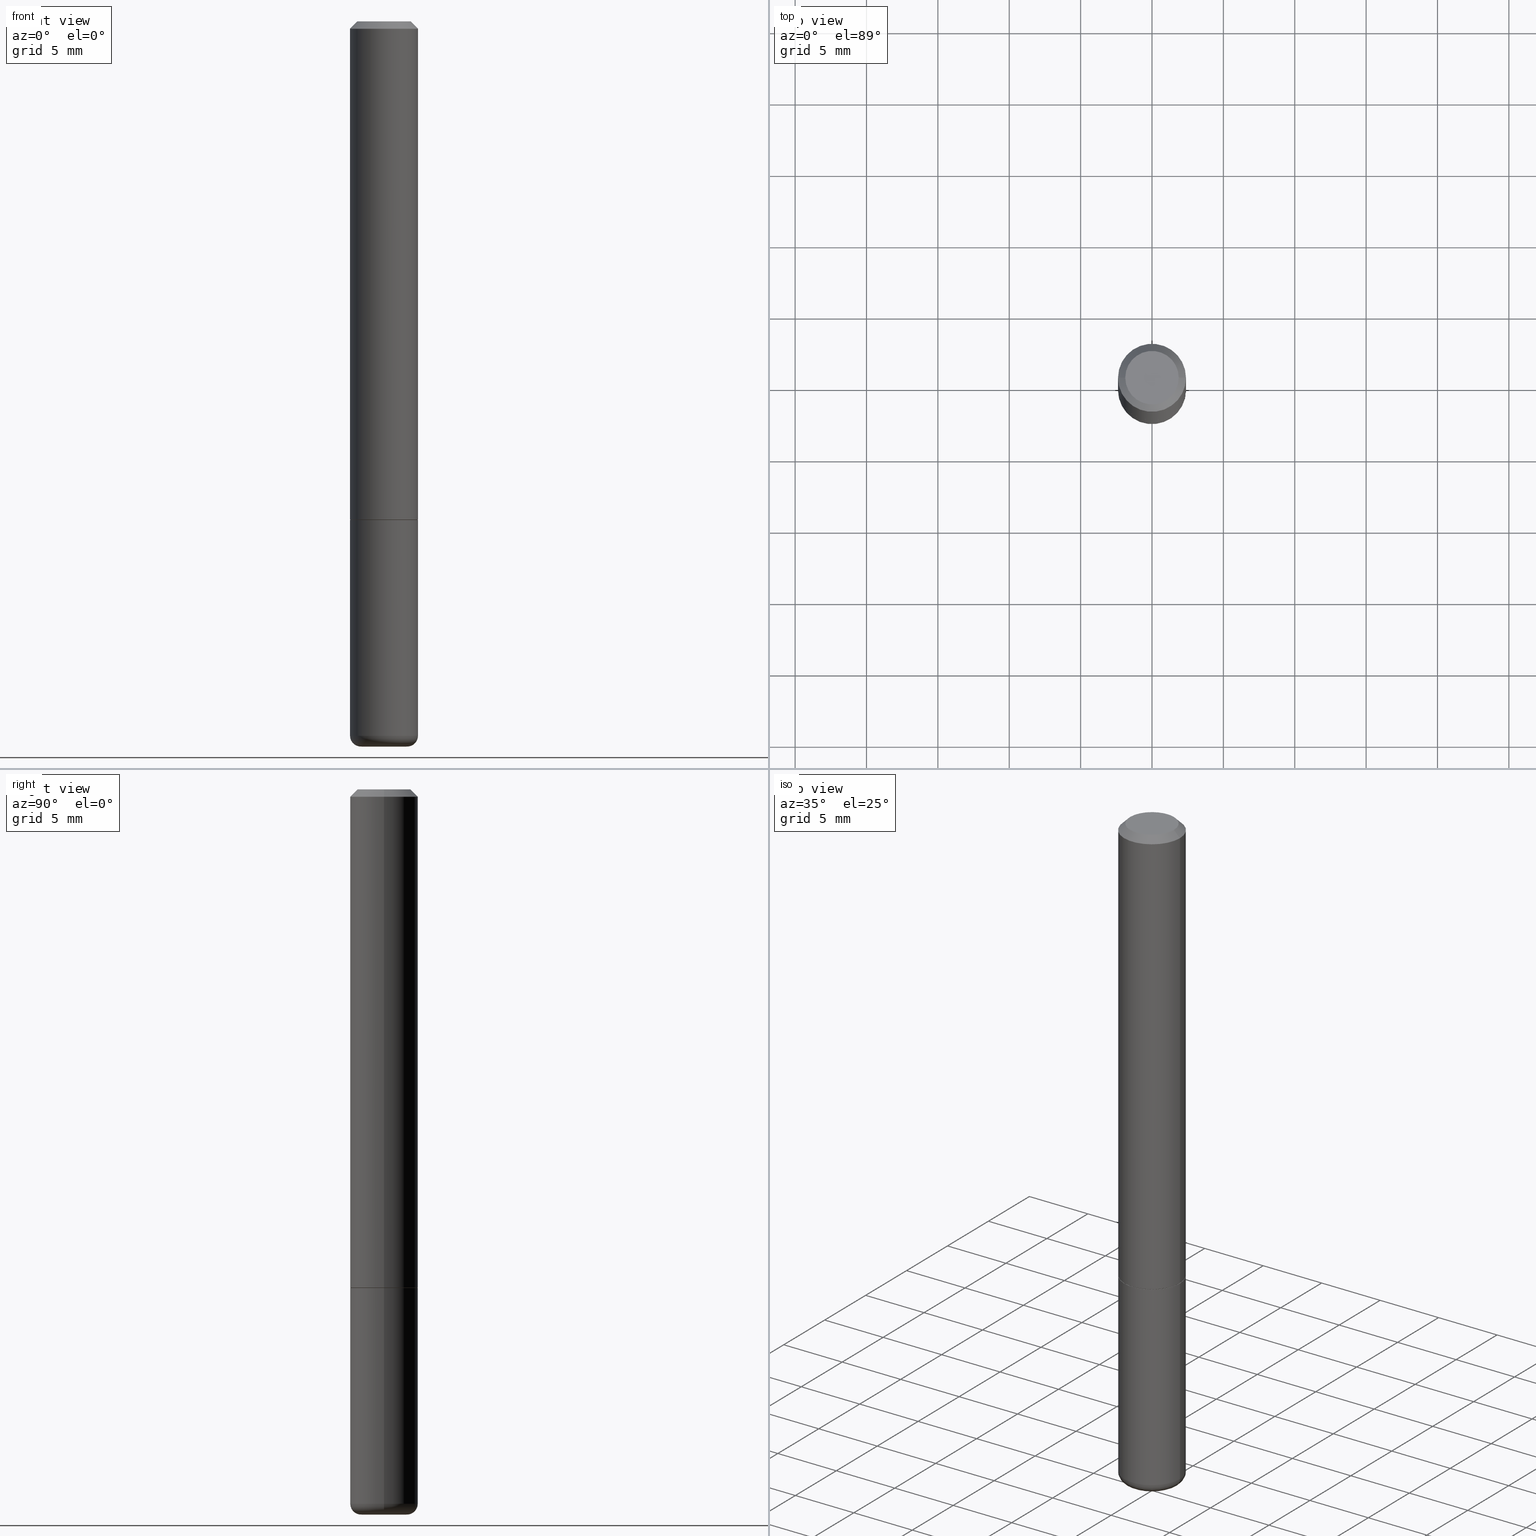
[diagram: canonical four-view strip — front | top / right | iso, engineering-drawing reading convention]
A machine part, canonical four-view strip (front | top / right | iso — engineering-drawing reading convention). The complete STEP part file that produces these views, byte-faithful:
ISO-10303-21;
HEADER;
FILE_DESCRIPTION (( 'STEP AP203' ),
    '1' );
FILE_NAME ('38161.STEP',
    '2023-03-22T20:26:36',
    ( '' ),
    ( '' ),
    'SwSTEP 2.0',
    'SolidWorks 2022',
    '' );
FILE_SCHEMA (( 'CONFIG_CONTROL_DESIGN' ));
ENDSEC;

DATA;
#1 = CC_DESIGN_PERSON_AND_ORGANIZATION_ASSIGNMENT ( #425, #394, ( #135 ) ) ;
#2 = DIRECTION ( 'NONE',  ( -2.445468806185136597E-29, 3.491481338843145583E-15, 1.000000000000000000 ) ) ;
#3 = EDGE_CURVE ( 'NONE', #395, #365, #35, .T. ) ;
#4 = DIRECTION ( 'NONE',  ( -1.000000000000000000, 6.982962677686265922E-15, -4.876176775795935793E-29 ) ) ;
#5 = FACE_OUTER_BOUND ( 'NONE', #129, .T. ) ;
#6 = PLANE ( 'NONE',  #85 ) ;
#7 = CIRCLE ( 'NONE', #284, 0.09375000000000001388 ) ;
#8 = VECTOR ( 'NONE', #31, 39.37007874015748854 ) ;
#9 = CC_DESIGN_PERSON_AND_ORGANIZATION_ASSIGNMENT ( #116, #16, ( #135 ) ) ;
#10 = EDGE_CURVE ( 'NONE', #434, #164, #59, .T. ) ;
#11 = DIRECTION ( 'NONE',  ( -2.445468806185136597E-29, 3.491481338843145583E-15, 1.000000000000000000 ) ) ;
#12 = CALENDAR_DATE ( 2023, 22, 3 ) ;
#13 = CIRCLE ( 'NONE', #384, 0.06217992131271189021 ) ;
#14 = ORIENTED_EDGE ( 'NONE', *, *, #151, .T. ) ;
#15 = CC_DESIGN_PERSON_AND_ORGANIZATION_ASSIGNMENT ( #24, #424, ( #239 ) ) ;
#16 = PERSON_AND_ORGANIZATION_ROLE ( 'design_supplier' ) ;
#17 = DESIGN_CONTEXT ( 'detailed design', #64, 'design' ) ;
#18 = ADVANCED_FACE ( 'NONE', ( #134 ), #114, .T. ) ;
#19 = VERTEX_POINT ( 'NONE', #65 ) ;
#20 = VERTEX_POINT ( 'NONE', #268 ) ;
#21 = APPROVAL_STATUS ( 'not_yet_approved' ) ;
#22 = CIRCLE ( 'NONE', #190, 0.02999999999999998848 ) ;
#23 = AXIS2_PLACEMENT_3D ( 'NONE', #437, #161, #29 ) ;
#24 = PERSON_AND_ORGANIZATION ( #199, #80 ) ;
#25 = EDGE_LOOP ( 'NONE', ( #296, #127, #204, #188 ) ) ;
#26 = ORIENTED_EDGE ( 'NONE', *, *, #246, .F. ) ;
#27 = ORIENTED_EDGE ( 'NONE', *, *, #246, .T. ) ;
#28 = AXIS2_PLACEMENT_3D ( 'NONE', #318, #11, #382 ) ;
#29 = DIRECTION ( 'NONE',  ( 1.000000000000000000, -6.982962677686266711E-15, 4.876176775795935793E-29 ) ) ;
#30 = EDGE_LOOP ( 'NONE', ( #372, #152, #206 ) ) ;
#31 = DIRECTION ( 'NONE',  ( 0.7071067811865232589, -2.468850131082003836E-15, 0.7071067811865715536 ) ) ;
#32 = DIRECTION ( 'NONE',  ( -2.445468806185136597E-29, 3.491481338843145583E-15, 1.000000000000000000 ) ) ;
#33 = DIRECTION ( 'NONE',  ( -2.445468806185136597E-29, 3.491481338843145583E-15, 1.000000000000000000 ) ) ;
#34 = FACE_OUTER_BOUND ( 'NONE', #48, .T. ) ;
#35 = CIRCLE ( 'NONE', #260, 0.09375000000000001388 ) ;
#36 = EDGE_CURVE ( 'NONE', #259, #381, #93, .T. ) ;
#37 = AXIS2_PLACEMENT_3D ( 'NONE', #309, #441, #53 ) ;
#38 = CARTESIAN_POINT ( 'NONE',  ( -7.001659922857298585E-19, -6.971584946974175960E-15, -1.996741288408006909 ) ) ;
#39 = DIRECTION ( 'NONE',  ( 1.000000000000000000, -6.982962677686267499E-15, 0.000000000000000000 ) ) ;
#40 = DIRECTION ( 'NONE',  ( -0.9986295347545742773, 6.790662755453671622E-15, -0.05233595624293576470 ) ) ;
#41 = DIRECTION ( 'NONE',  ( 1.000000000000000000, -6.982962677686261189E-15, 0.000000000000000000 ) ) ;
#42 = EDGE_CURVE ( 'NONE', #95, #20, #54, .T. ) ;
#43 = CYLINDRICAL_SURFACE ( 'NONE', #377, 0.09374999999999998612 ) ;
#44 = AXIS2_PLACEMENT_3D ( 'NONE', #197, #136, #369 ) ;
#45 = FACE_OUTER_BOUND ( 'NONE', #427, .T. ) ;
#46 = ORIENTED_EDGE ( 'NONE', *, *, #179, .F. ) ;
#47 = AXIS2_PLACEMENT_3D ( 'NONE', #144, #2, #41 ) ;
#48 = EDGE_LOOP ( 'NONE', ( #342, #87 ) ) ;
#49 = CALENDAR_DATE ( 2023, 22, 3 ) ;
#50 = SECURITY_CLASSIFICATION_LEVEL ( 'unclassified' ) ;
#51 = LOCAL_TIME ( 16, 26, 36.00000000000000000, #118 ) ;
#52 = VERTEX_POINT ( 'NONE', #108 ) ;
#53 = DIRECTION ( 'NONE',  ( -1.000000000000000000, 6.982962677686267499E-15, 0.000000000000000000 ) ) ;
#54 = LINE ( 'NONE', #283, #367 ) ;
#55 = DIRECTION ( 'NONE',  ( -1.000000000000000000, 6.982962677686265922E-15, 0.000000000000000000 ) ) ;
#56 = ORIENTED_EDGE ( 'NONE', *, *, #103, .T. ) ;
#57 = DIRECTION ( 'NONE',  ( -2.445468806185136597E-29, 3.491481338843145583E-15, 1.000000000000000000 ) ) ;
#58 = DIRECTION ( 'NONE',  ( -2.445468806185136597E-29, 3.491481338843145583E-15, 1.000000000000000000 ) ) ;
#59 = LINE ( 'NONE', #438, #390 ) ;
#60 = AXIS2_PLACEMENT_3D ( 'NONE', #312, #209, #140 ) ;
#61 = AXIS2_PLACEMENT_3D ( 'NONE', #251, #386, #74 ) ;
#62 = DIRECTION ( 'NONE',  ( 1.000000000000000000, -6.982962677686263555E-15, 0.000000000000000000 ) ) ;
#63 = EDGE_LOOP ( 'NONE', ( #405, #193, #167, #431 ) ) ;
#64 = APPLICATION_CONTEXT ( 'configuration controlled 3d designs of mechanical parts and assemblies' ) ;
#65 = CARTESIAN_POINT ( 'NONE',  ( 0.09374999999999998612, -7.533014537168982211E-15, -1.970041113957362811 ) ) ;
#66 = EDGE_CURVE ( 'NONE', #164, #19, #22, .T. ) ;
#67 = DIRECTION ( 'NONE',  ( -2.445468806185136597E-29, 3.491481338843145583E-15, 1.000000000000000000 ) ) ;
#68 = DIRECTION ( 'NONE',  ( 2.438088387897960049E-29, -3.491481338843145188E-15, -1.000000000000000000 ) ) ;
#69 = AXIS2_PLACEMENT_3D ( 'NONE', #280, #347, #4 ) ;
#70 = AXIS2_PLACEMENT_3D ( 'NONE', #412, #337, #301 ) ;
#71 = DIRECTION ( 'NONE',  ( -2.445468806185136597E-29, 3.491481338843145583E-15, 1.000000000000000000 ) ) ;
#72 = DIRECTION ( 'NONE',  ( 1.000000000000000000, -6.982962677686266711E-15, 4.876176775795935793E-29 ) ) ;
#73 = EDGE_CURVE ( 'NONE', #230, #52, #442, .T. ) ;
#74 = DIRECTION ( 'NONE',  ( -1.000000000000000000, 6.982962677686267499E-15, 0.000000000000000000 ) ) ;
#75 = DIRECTION ( 'NONE',  ( -0.7071067811865466846, 2.468850131082247989E-15, -0.7071067811865483499 ) ) ;
#76 = CC_DESIGN_PERSON_AND_ORGANIZATION_ASSIGNMENT ( #292, #148, ( #122 ) ) ;
#77 = CARTESIAN_POINT ( 'NONE',  ( 0.000000000000000000, 0.000000000000000000, 0.000000000000000000 ) ) ;
#78 = CIRCLE ( 'NONE', #298, 0.09374999999999981959 ) ;
#79 = CARTESIAN_POINT ( 'NONE',  ( 4.890937612370273194E-29, -6.982962677686291165E-15, -2.000000000000000000 ) ) ;
#80 = ORGANIZATION ( 'UNSPECIFIED', 'UNSPECIFIED', '' ) ;
#81 = VERTEX_POINT ( 'NONE', #420 ) ;
#82 = ADVANCED_FACE ( 'NONE', ( #385 ), #207, .T. ) ;
#83 = COORDINATED_UNIVERSAL_TIME_OFFSET ( 5, 0, .BEHIND. ) ;
#84 = CALENDAR_DATE ( 2023, 22, 3 ) ;
#85 = AXIS2_PLACEMENT_3D ( 'NONE', #245, #68, #282 ) ;
#86 = CIRCLE ( 'NONE', #191, 0.06217992131271189021 ) ;
#87 = ORIENTED_EDGE ( 'NONE', *, *, #302, .T. ) ;
#88 = DATE_AND_TIME ( #49, #51 ) ;
#89 = ORIENTED_EDGE ( 'NONE', *, *, #117, .F. ) ;
#90 = APPROVAL_ROLE ( '' ) ;
#91 = EDGE_LOOP ( 'NONE', ( #327, #159, #14, #305 ) ) ;
#92 = VECTOR ( 'NONE', #75, 39.37007874015748143 ) ;
#93 = LINE ( 'NONE', #233, #218 ) ;
#94 = CARTESIAN_POINT ( 'NONE',  ( -0.09274999999999999911, -4.136459999143610400E-15, -1.375000000000000000 ) ) ;
#95 = VERTEX_POINT ( 'NONE', #349 ) ;
#96 = EDGE_CURVE ( 'NONE', #434, #81, #215, .T. ) ;
#97 = DIRECTION ( 'NONE',  ( -0.7071067811865232589, 7.493145998870265808E-15, 0.7071067811865715536 ) ) ;
#98 = ORIENTED_EDGE ( 'NONE', *, *, #151, .F. ) ;
#99 = CARTESIAN_POINT ( 'NONE',  ( 0.09274999999999999911, -5.448456629264727208E-15, -1.375000000000000000 ) ) ;
#100 = EDGE_LOOP ( 'NONE', ( #26, #332, #336, #344 ) ) ;
#101 = CIRCLE ( 'NONE', #203, 0.09274999999999999911 ) ;
#102 = FACE_OUTER_BOUND ( 'NONE', #339, .T. ) ;
#103 = EDGE_CURVE ( 'NONE', #81, #259, #119, .T. ) ;
#104 = DIRECTION ( 'NONE',  ( -2.445468806185136597E-29, 3.491481338843145583E-15, 1.000000000000000000 ) ) ;
#105 =( NAMED_UNIT ( * ) SI_UNIT ( $, .STERADIAN. ) SOLID_ANGLE_UNIT ( ) );
#106 = DIRECTION ( 'NONE',  ( 1.000000000000000000, -6.982962677686273021E-15, 0.000000000000000000 ) ) ;
#107 = LENGTH_MEASURE_WITH_UNIT ( LENGTH_MEASURE( 0.02539999999999999897 ), #350 );
#108 = CARTESIAN_POINT ( 'NONE',  ( -0.09374999999999981959, 5.848231242562233185E-16, -0.02000000000000002123 ) ) ;
#109 = VECTOR ( 'NONE', #423, 39.37007874015748143 ) ;
#110 = FACE_OUTER_BOUND ( 'NONE', #25, .T. ) ;
#111 = DIRECTION ( 'NONE',  ( 0.7071067811865466846, -7.319954787623252890E-15, -0.7071067811865483499 ) ) ;
#112 = CARTESIAN_POINT ( 'NONE',  ( 0.09375000000000001388, -5.451948110603568638E-15, -1.373999999999999888 ) ) ;
#113 = CARTESIAN_POINT ( 'NONE',  ( 4.890937612370278413E-31, -6.982962677686297772E-17, -0.02000000000000002123 ) ) ;
#114 = TOROIDAL_SURFACE ( 'NONE', #410, 0.06375000000000000111, 0.02999999999999998848 ) ;
#115 = CIRCLE ( 'NONE', #433, 0.09374999999999998612 ) ;
#116 = PERSON_AND_ORGANIZATION ( #199, #80 ) ;
#117 = EDGE_CURVE ( 'NONE', #52, #20, #78, .T. ) ;
#118 = COORDINATED_UNIVERSAL_TIME_OFFSET ( 5, 0, .BEHIND. ) ;
#119 = CIRCLE ( 'NONE', #60, 0.02999999999999998848 ) ;
#120 = AXIS2_PLACEMENT_3D ( 'NONE', #113, #243, #39 ) ;
#121 = CALENDAR_DATE ( 2023, 22, 3 ) ;
#122 = PRODUCT_DEFINITION ( 'UNKNOWN', '', #135, #17 ) ;
#123 = EDGE_LOOP ( 'NONE', ( #238, #221, #380 ) ) ;
#124 = FACE_OUTER_BOUND ( 'NONE', #30, .T. ) ;
#125 = ADVANCED_FACE ( 'NONE', ( #34 ), #169, .F. ) ;
#126 = APPROVAL_PERSON_ORGANIZATION ( #183, #262, #397 ) ;
#127 = ORIENTED_EDGE ( 'NONE', *, *, #328, .T. ) ;
#128 = DIRECTION ( 'NONE',  ( -2.445468806185136597E-29, 3.491481338843145583E-15, 1.000000000000000000 ) ) ;
#129 = EDGE_LOOP ( 'NONE', ( #182, #158, #46, #98 ) ) ;
#130 = FACE_OUTER_BOUND ( 'NONE', #123, .T. ) ;
#131 = EDGE_LOOP ( 'NONE', ( #329, #392, #303, #324 ) ) ;
#132 = ADVANCED_BREP_SHAPE_REPRESENTATION ( '38161', ( #376, #359, #163 ), #428 ) ;
#133 = ADVANCED_FACE ( 'NONE', ( #139 ), #323, .T. ) ;
#134 = FACE_OUTER_BOUND ( 'NONE', #401, .T. ) ;
#135 = PRODUCT_DEFINITION_FORMATION_WITH_SPECIFIED_SOURCE ( 'ANY', '', #235, .NOT_KNOWN. ) ;
#136 = DIRECTION ( 'NONE',  ( -2.445468806185136597E-29, 3.491481338843145583E-15, 1.000000000000000000 ) ) ;
#137 = CARTESIAN_POINT ( 'NONE',  ( 4.890937612370278413E-31, -6.982962677686297772E-17, -0.02000000000000002123 ) ) ;
#138 = DIRECTION ( 'NONE',  ( -2.445468806185136597E-29, 3.491481338843145583E-15, 1.000000000000000000 ) ) ;
#139 = FACE_OUTER_BOUND ( 'NONE', #100, .T. ) ;
#140 = DIRECTION ( 'NONE',  ( -1.000000000000000000, 7.105427357600993970E-15, 0.000000000000000000 ) ) ;
#141 = ADVANCED_FACE ( 'NONE', ( #317 ), #6, .F. ) ;
#142 = CONICAL_SURFACE ( 'NONE', #341, 751.2258538476835383, 1.518436449235074814 ) ;
#143 = CARTESIAN_POINT ( 'NONE',  ( 0.06217992131271189021, -7.417162747514426598E-15, -2.000000000000000000 ) ) ;
#144 = CARTESIAN_POINT ( 'NONE',  ( 3.362519608504562260E-29, -4.800786840909324930E-15, -1.375000000000000000 ) ) ;
#145 = EDGE_CURVE ( 'NONE', #365, #20, #247, .T. ) ;
#146 =( NAMED_UNIT ( * ) PLANE_ANGLE_UNIT ( ) SI_UNIT ( $, .RADIAN. ) );
#147 = CLOSED_SHELL ( 'NONE', ( #285, #82, #416, #217, #379, #133, #174, #141 ) ) ;
#148 = PERSON_AND_ORGANIZATION_ROLE ( 'creator' ) ;
#149 = LOCAL_TIME ( 16, 26, 36.00000000000000000, #227 ) ;
#150 = COORDINATED_UNIVERSAL_TIME_OFFSET ( 5, 0, .BEHIND. ) ;
#151 = EDGE_CURVE ( 'NONE', #19, #273, #362, .T. ) ;
#152 = ORIENTED_EDGE ( 'NONE', *, *, #96, .T. ) ;
#153 = APPROVAL_STATUS ( 'not_yet_approved' ) ;
#154 = ORIENTED_EDGE ( 'NONE', *, *, #279, .F. ) ;
#155 = DATE_AND_TIME ( #12, #319 ) ;
#156 = CONICAL_SURFACE ( 'NONE', #61, 0.09374999999999981959, 0.7853981633974471688 ) ;
#157 = CC_DESIGN_APPROVAL ( #363, ( #122 ) ) ;
#158 = ORIENTED_EDGE ( 'NONE', *, *, #36, .T. ) ;
#159 = ORIENTED_EDGE ( 'NONE', *, *, #430, .T. ) ;
#160 = EDGE_CURVE ( 'NONE', #395, #52, #330, .T. ) ;
#161 = DIRECTION ( 'NONE',  ( -2.445468806185136597E-29, 3.491481338843145583E-15, 1.000000000000000000 ) ) ;
#162 = ORIENTED_EDGE ( 'NONE', *, *, #145, .T. ) ;
#163 = AXIS2_PLACEMENT_3D ( 'NONE', #426, #326, #429 ) ;
#164 = VERTEX_POINT ( 'NONE', #143 ) ;
#165 = CARTESIAN_POINT ( 'NONE',  ( 3.362519608504562260E-29, -4.800786840909324930E-15, -1.375000000000000000 ) ) ;
#166 = ORIENTED_EDGE ( 'NONE', *, *, #194, .F. ) ;
#167 = ORIENTED_EDGE ( 'NONE', *, *, #391, .T. ) ;
#168 = DIRECTION ( 'NONE',  ( -2.445468806185136597E-29, 3.491481338843145583E-15, 1.000000000000000000 ) ) ;
#169 = PLANE ( 'NONE',  #69 ) ;
#170 = CIRCLE ( 'NONE', #23, 0.07374999999999984346 ) ;
#171 = PLANE ( 'NONE',  #201 ) ;
#172 = DIRECTION ( 'NONE',  ( -6.982962677686266711E-15, -1.000000000000000000, 3.491481338843145583E-15 ) ) ;
#173 = CARTESIAN_POINT ( 'NONE',  ( 0.000000000000000000, 0.000000000000000000, 0.000000000000000000 ) ) ;
#174 = ADVANCED_FACE ( 'NONE', ( #250 ), #171, .F. ) ;
#175 = DIRECTION ( 'NONE',  ( 1.000000000000000000, -6.982962677686270655E-15, 0.000000000000000000 ) ) ;
#176 = CYLINDRICAL_SURFACE ( 'NONE', #223, 0.09374999999999991673 ) ;
#177 = CONICAL_SURFACE ( 'NONE', #70, 751.2258538476835383, 1.518436449235074814 ) ;
#178 = AXIS2_PLACEMENT_3D ( 'NONE', #214, #321, #389 ) ;
#179 = EDGE_CURVE ( 'NONE', #273, #381, #7, .T. ) ;
#180 = CARTESIAN_POINT ( 'NONE',  ( -0.09375000000000001388, -1.767428678398575728E-15, -1.373999999999999888 ) ) ;
#181 = PERSON_AND_ORGANIZATION ( #199, #80 ) ;
#182 = ORIENTED_EDGE ( 'NONE', *, *, #194, .T. ) ;
#183 = PERSON_AND_ORGANIZATION ( #199, #80 ) ;
#184 = ORIENTED_EDGE ( 'NONE', *, *, #407, .T. ) ;
#185 = DIRECTION ( 'NONE',  ( -2.445468806185136877E-29, 3.491481338843145188E-15, 1.000000000000000000 ) ) ;
#186 = ORIENTED_EDGE ( 'NONE', *, *, #391, .F. ) ;
#187 = DATE_AND_TIME ( #84, #149 ) ;
#188 = ORIENTED_EDGE ( 'NONE', *, *, #430, .F. ) ;
#189 = PERSON_AND_ORGANIZATION ( #199, #80 ) ;
#190 = AXIS2_PLACEMENT_3D ( 'NONE', #383, #172, #175 ) ;
#191 = AXIS2_PLACEMENT_3D ( 'NONE', #79, #287, #252 ) ;
#192 = DIRECTION ( 'NONE',  ( -2.438088387897960049E-29, 3.491481338843145188E-15, 1.000000000000000000 ) ) ;
#193 = ORIENTED_EDGE ( 'NONE', *, *, #42, .T. ) ;
#194 = EDGE_CURVE ( 'NONE', #19, #259, #375, .T. ) ;
#195 = DIRECTION ( 'NONE',  ( 1.000000000000000000, -6.982962677686273021E-15, 0.000000000000000000 ) ) ;
#196 = ORIENTED_EDGE ( 'NONE', *, *, #289, .F. ) ;
#197 = CARTESIAN_POINT ( 'NONE',  ( 0.000000000000000000, 0.000000000000000000, 0.000000000000000000 ) ) ;
#198 = ORIENTED_EDGE ( 'NONE', *, *, #3, .T. ) ;
#199 = PERSON ( 'UNSPECIFIED', 'UNSPECIFIED', 'UNSPECIFIED', ('UNSPECIFIED'), ('UNSPECIFIED'), ('UNSPECIFIED') ) ;
#200 = DIRECTION ( 'NONE',  ( 1.000000000000000000, -6.982962677686273021E-15, 0.000000000000000000 ) ) ;
#201 = AXIS2_PLACEMENT_3D ( 'NONE', #315, #192, #237 ) ;
#202 = DIRECTION ( 'NONE',  ( 1.000000000000000000, -6.982962677686261189E-15, 0.000000000000000000 ) ) ;
#203 = AXIS2_PLACEMENT_3D ( 'NONE', #165, #168, #304 ) ;
#204 = ORIENTED_EDGE ( 'NONE', *, *, #66, .T. ) ;
#205 = FACE_OUTER_BOUND ( 'NONE', #131, .T. ) ;
#206 = ORIENTED_EDGE ( 'NONE', *, *, #229, .F. ) ;
#207 = CYLINDRICAL_SURFACE ( 'NONE', #276, 0.09374999999999991673 ) ;
#208 = CARTESIAN_POINT ( 'NONE',  ( 4.882479611524434733E-29, -6.972285112966511073E-15, -1.996741288408006909 ) ) ;
#209 = DIRECTION ( 'NONE',  ( 7.105427357601001859E-15, 1.000000000000000000, -3.491481338843145583E-15 ) ) ;
#210 = CC_DESIGN_SECURITY_CLASSIFICATION ( #239, ( #135 ) ) ;
#211 = ADVANCED_FACE ( 'NONE', ( #124 ), #177, .F. ) ;
#212 = DIRECTION ( 'NONE',  ( 1.000000000000000000, -6.982962677686263555E-15, 4.883557194083111219E-29 ) ) ;
#213 = DIRECTION ( 'NONE',  ( -2.445468806185136597E-29, 3.491481338843145583E-15, 1.000000000000000000 ) ) ;
#214 = CARTESIAN_POINT ( 'NONE',  ( 0.000000000000000000, 0.000000000000000000, 0.000000000000000000 ) ) ;
#215 = LINE ( 'NONE', #38, #340 ) ;
#216 =( CONVERSION_BASED_UNIT ( 'INCH', #107 ) LENGTH_UNIT ( ) NAMED_UNIT ( #393 ) );
#217 = ADVANCED_FACE ( 'NONE', ( #205 ), #219, .T. ) ;
#218 = VECTOR ( 'NONE', #370, 39.37007874015748143 ) ;
#219 = CONICAL_SURFACE ( 'NONE', #37, 0.09374999999999981959, 0.7853981633974471688 ) ;
#220 = CARTESIAN_POINT ( 'NONE',  ( 4.817674091084948534E-29, -6.878361786135894707E-15, -1.970041113957362811 ) ) ;
#221 = ORIENTED_EDGE ( 'NONE', *, *, #10, .T. ) ;
#222 = ADVANCED_FACE ( 'NONE', ( #130 ), #142, .F. ) ;
#223 = AXIS2_PLACEMENT_3D ( 'NONE', #173, #67, #417 ) ;
#224 = VERTEX_POINT ( 'NONE', #274 ) ;
#225 = APPROVAL_DATE_TIME ( #155, #262 ) ;
#226 = CARTESIAN_POINT ( 'NONE',  ( 0.09374999999999998612, -6.546527510330874055E-16, 4.571415727308689105E-30 ) ) ;
#227 = COORDINATED_UNIVERSAL_TIME_OFFSET ( 5, 0, .BEHIND. ) ;
#228 = APPLICATION_CONTEXT ( 'configuration controlled 3d designs of mechanical parts and assemblies' ) ;
#229 = EDGE_CURVE ( 'NONE', #164, #81, #13, .T. ) ;
#230 = VERTEX_POINT ( 'NONE', #306 ) ;
#231 = TOROIDAL_SURFACE ( 'NONE', #300, 0.06375000000000000111, 0.02999999999999998848 ) ;
#232 = CARTESIAN_POINT ( 'NONE',  ( -0.09374999999999998612, -5.173440498747515894E-15, -1.970041113957362811 ) ) ;
#233 = CARTESIAN_POINT ( 'NONE',  ( -0.09374999999999998612, 6.661338147750938256E-16, -4.611501647113973295E-30 ) ) ;
#234 = ORIENTED_EDGE ( 'NONE', *, *, #407, .F. ) ;
#235 = PRODUCT ( '38161', '38161', '', ( #399 ) ) ;
#236 = CARTESIAN_POINT ( 'NONE',  ( 3.362519608504562260E-29, -4.800786840909324930E-15, -1.375000000000000000 ) ) ;
#237 = DIRECTION ( 'NONE',  ( 1.000000000000000000, -6.982962677686265922E-15, 4.876176775795935793E-29 ) ) ;
#238 = ORIENTED_EDGE ( 'NONE', *, *, #96, .F. ) ;
#239 = SECURITY_CLASSIFICATION ( '', '', #50 ) ;
#240 = DIRECTION ( 'NONE',  ( 0.9986295347545742773, -7.033825938271995545E-15, -0.05233595624293576470 ) ) ;
#241 = LINE ( 'NONE', #99, #8 ) ;
#242 = DIRECTION ( 'NONE',  ( 1.000000000000000000, -6.982962677686263555E-15, 4.883557194083111219E-29 ) ) ;
#243 = DIRECTION ( 'NONE',  ( -2.445468806185136597E-29, 3.491481338843145583E-15, 1.000000000000000000 ) ) ;
#244 = CC_DESIGN_DATE_AND_TIME_ASSIGNMENT ( #290, #261, ( #122 ) ) ;
#245 = CARTESIAN_POINT ( 'NONE',  ( 5.149934974793610063E-16, 0.07374999999999984346, -2.574967487396814399E-16 ) ) ;
#246 = EDGE_CURVE ( 'NONE', #265, #395, #404, .T. ) ;
#247 = LINE ( 'NONE', #415, #439 ) ;
#248 = FACE_OUTER_BOUND ( 'NONE', #63, .T. ) ;
#249 = CARTESIAN_POINT ( 'NONE',  ( -0.09374999999999981959, 5.848231242562233185E-16, -0.02000000000000002123 ) ) ;
#250 = FACE_OUTER_BOUND ( 'NONE', #291, .T. ) ;
#251 = CARTESIAN_POINT ( 'NONE',  ( 4.890937612370278413E-31, -6.982962677686297772E-17, -0.02000000000000002123 ) ) ;
#252 = DIRECTION ( 'NONE',  ( 1.000000000000000000, -6.982962677686262766E-15, 0.000000000000000000 ) ) ;
#253 = PERSON_AND_ORGANIZATION ( #199, #80 ) ;
#254 = DATE_AND_TIME ( #364, #334 ) ;
#255 = APPROVAL ( #153, 'UNSPECIFIED' ) ;
#256 = ORIENTED_EDGE ( 'NONE', *, *, #66, .F. ) ;
#257 = EDGE_CURVE ( 'NONE', #230, #95, #170, .T. ) ;
#258 = APPROVAL_ROLE ( '' ) ;
#259 = VERTEX_POINT ( 'NONE', #232 ) ;
#260 = AXIS2_PLACEMENT_3D ( 'NONE', #406, #32, #307 ) ;
#261 = DATE_TIME_ROLE ( 'creation_date' ) ;
#262 = APPROVAL ( #21, 'UNSPECIFIED' ) ;
#263 = APPLICATION_PROTOCOL_DEFINITION ( 'international standard', 'config_control_design', 1994, #64 ) ;
#264 = EDGE_CURVE ( 'NONE', #95, #230, #440, .T. ) ;
#265 = VERTEX_POINT ( 'NONE', #94 ) ;
#266 = DIRECTION ( 'NONE',  ( -2.445468806185136877E-29, 3.491481338843145188E-15, 1.000000000000000000 ) ) ;
#267 = UNCERTAINTY_MEASURE_WITH_UNIT (LENGTH_MEASURE( 1.000000000000000082E-05 ), #216, 'distance_accuracy_value', 'NONE');
#268 = CARTESIAN_POINT ( 'NONE',  ( 0.09374999999999981959, -7.130013140679428044E-16, -0.02000000000000002123 ) ) ;
#269 = VECTOR ( 'NONE', #97, 39.37007874015748854 ) ;
#270 = DIRECTION ( 'NONE',  ( 2.445468806185136597E-29, -3.491481338843145583E-15, -1.000000000000000000 ) ) ;
#271 = ORIENTED_EDGE ( 'NONE', *, *, #264, .T. ) ;
#272 = CARTESIAN_POINT ( 'NONE',  ( -0.09274999999999999911, -4.141758453491832014E-15, -1.375000000000000000 ) ) ;
#273 = VERTEX_POINT ( 'NONE', #373 ) ;
#274 = CARTESIAN_POINT ( 'NONE',  ( 0.09274999999999999911, -5.448456629264727208E-15, -1.375000000000000000 ) ) ;
#275 = ORIENTED_EDGE ( 'NONE', *, *, #257, .T. ) ;
#276 = AXIS2_PLACEMENT_3D ( 'NONE', #314, #387, #72 ) ;
#277 = AXIS2_PLACEMENT_3D ( 'NONE', #236, #57, #200 ) ;
#278 = ORIENTED_EDGE ( 'NONE', *, *, #145, .F. ) ;
#279 = EDGE_CURVE ( 'NONE', #224, #265, #422, .T. ) ;
#280 = CARTESIAN_POINT ( 'NONE',  ( 6.546527510331211293E-16, 0.09374999999999521216, -1.375000000000000222 ) ) ;
#281 = DIRECTION ( 'NONE',  ( 1.000000000000000000, -6.982962677686266711E-15, 4.876176775795935793E-29 ) ) ;
#282 = DIRECTION ( 'NONE',  ( -1.000000000000000000, 6.982962677686265922E-15, -4.876176775795935793E-29 ) ) ;
#283 = CARTESIAN_POINT ( 'NONE',  ( 0.09374999999999981959, -7.130013140679428044E-16, -0.02000000000000002123 ) ) ;
#284 = AXIS2_PLACEMENT_3D ( 'NONE', #400, #58, #202 ) ;
#285 = ADVANCED_FACE ( 'NONE', ( #102 ), #358, .T. ) ;
#286 = PRODUCT_RELATED_PRODUCT_CATEGORY ( 'detail', '', ( #235 ) ) ;
#287 = DIRECTION ( 'NONE',  ( -2.445468806185136597E-29, 3.491481338843145583E-15, 1.000000000000000000 ) ) ;
#288 = LOCAL_TIME ( 16, 26, 36.00000000000000000, #150 ) ;
#289 = EDGE_CURVE ( 'NONE', #265, #224, #101, .T. ) ;
#290 = DATE_AND_TIME ( #121, #288 ) ;
#291 = EDGE_LOOP ( 'NONE', ( #154, #196 ) ) ;
#292 = PERSON_AND_ORGANIZATION ( #199, #80 ) ;
#293 = EDGE_CURVE ( 'NONE', #224, #365, #241, .T. ) ;
#294 = APPROVAL_DATE_TIME ( #187, #255 ) ;
#295 = APPROVAL_PERSON_ORGANIZATION ( #253, #363, #90 ) ;
#296 = ORIENTED_EDGE ( 'NONE', *, *, #103, .F. ) ;
#297 = ORIENTED_EDGE ( 'NONE', *, *, #160, .F. ) ;
#298 = AXIS2_PLACEMENT_3D ( 'NONE', #137, #351, #346 ) ;
#299 = CC_DESIGN_DATE_AND_TIME_ASSIGNMENT ( #88, #335, ( #239 ) ) ;
#300 = AXIS2_PLACEMENT_3D ( 'NONE', #220, #71, #212 ) ;
#301 = DIRECTION ( 'NONE',  ( -1.000000000000000000, 6.982962677686265922E-15, 0.000000000000000000 ) ) ;
#302 = EDGE_CURVE ( 'NONE', #381, #273, #325, .T. ) ;
#303 = ORIENTED_EDGE ( 'NONE', *, *, #73, .T. ) ;
#304 = DIRECTION ( 'NONE',  ( 1.000000000000000000, -6.982962677686273021E-15, 0.000000000000000000 ) ) ;
#305 = ORIENTED_EDGE ( 'NONE', *, *, #302, .F. ) ;
#306 = CARTESIAN_POINT ( 'NONE',  ( -0.07374999999999984346, 5.499083108677921624E-16, -3.723527850031186263E-30 ) ) ;
#307 = DIRECTION ( 'NONE',  ( 1.000000000000000000, -6.982962677686261189E-15, 0.000000000000000000 ) ) ;
#308 = ADVANCED_FACE ( 'NONE', ( #421 ), #313, .T. ) ;
#309 = CARTESIAN_POINT ( 'NONE',  ( 4.890937612370278413E-31, -6.982962677686297772E-17, -0.02000000000000002123 ) ) ;
#310 = PRODUCT_DEFINITION_SHAPE ( 'NONE', 'NONE',  #122 ) ;
#311 = CIRCLE ( 'NONE', #28, 0.09375000000000001388 ) ;
#312 = CARTESIAN_POINT ( 'NONE',  ( -0.06375000000000000111, -6.425390792088831027E-15, -1.970041113957362811 ) ) ;
#313 = CYLINDRICAL_SURFACE ( 'NONE', #178, 0.09374999999999998612 ) ;
#314 = CARTESIAN_POINT ( 'NONE',  ( 0.000000000000000000, 0.000000000000000000, 0.000000000000000000 ) ) ;
#315 = CARTESIAN_POINT ( 'NONE',  ( 3.362519608504562260E-29, -4.800786840909324930E-15, -1.375000000000000000 ) ) ;
#316 = CARTESIAN_POINT ( 'NONE',  ( 4.817674091084948534E-29, -6.878361786135894707E-15, -1.970041113957362811 ) ) ;
#317 = FACE_OUTER_BOUND ( 'NONE', #398, .T. ) ;
#318 = CARTESIAN_POINT ( 'NONE',  ( 3.360074139698377778E-29, -4.797295359570481134E-15, -1.373999999999999888 ) ) ;
#319 = LOCAL_TIME ( 16, 26, 36.00000000000000000, #322 ) ;
#320 = APPLICATION_PROTOCOL_DEFINITION ( 'international standard', 'config_control_design', 1994, #228 ) ;
#321 = DIRECTION ( 'NONE',  ( -2.445468806185136597E-29, 3.491481338843145583E-15, 1.000000000000000000 ) ) ;
#322 = COORDINATED_UNIVERSAL_TIME_OFFSET ( 5, 0, .BEHIND. ) ;
#323 = CONICAL_SURFACE ( 'NONE', #333, 0.09274999999999999911, 0.7853981633974141952 ) ;
#324 = ORIENTED_EDGE ( 'NONE', *, *, #117, .T. ) ;
#325 = CIRCLE ( 'NONE', #47, 0.09375000000000001388 ) ;
#326 = DIRECTION ( 'NONE',  ( 0.000000000000000000, 0.000000000000000000, 1.000000000000000000 ) ) ;
#327 = ORIENTED_EDGE ( 'NONE', *, *, #36, .F. ) ;
#328 = EDGE_CURVE ( 'NONE', #81, #164, #86, .T. ) ;
#329 = ORIENTED_EDGE ( 'NONE', *, *, #42, .F. ) ;
#330 = LINE ( 'NONE', #355, #357 ) ;
#331 = PERSON_AND_ORGANIZATION_ROLE ( 'design_owner' ) ;
#332 = ORIENTED_EDGE ( 'NONE', *, *, #289, .T. ) ;
#333 = AXIS2_PLACEMENT_3D ( 'NONE', #414, #213, #106 ) ;
#334 = LOCAL_TIME ( 16, 26, 36.00000000000000000, #83 ) ;
#335 = DATE_TIME_ROLE ( 'classification_date' ) ;
#336 = ORIENTED_EDGE ( 'NONE', *, *, #293, .T. ) ;
#337 = DIRECTION ( 'NONE',  ( 2.445468806185136597E-29, -3.491481338843145583E-15, -1.000000000000000000 ) ) ;
#338 = ADVANCED_FACE ( 'NONE', ( #110 ), #231, .T. ) ;
#339 = EDGE_LOOP ( 'NONE', ( #409, #27, #234, #361 ) ) ;
#340 = VECTOR ( 'NONE', #40, 39.37007874015748854 ) ;
#341 = AXIS2_PLACEMENT_3D ( 'NONE', #345, #270, #55 ) ;
#342 = ORIENTED_EDGE ( 'NONE', *, *, #179, .T. ) ;
#343 = CARTESIAN_POINT ( 'NONE',  ( 3.362519608504562260E-29, -4.800786840909324930E-15, -1.375000000000000000 ) ) ;
#344 = ORIENTED_EDGE ( 'NONE', *, *, #3, .F. ) ;
#345 = CARTESIAN_POINT ( 'NONE',  ( 1.011612679909314432E-27, -1.444314801770192841E-13, -41.36682002856548479 ) ) ;
#346 = DIRECTION ( 'NONE',  ( 1.000000000000000000, -6.982962677686267499E-15, 0.000000000000000000 ) ) ;
#347 = DIRECTION ( 'NONE',  ( 2.438088387897960049E-29, -3.491481338843145188E-15, -1.000000000000000000 ) ) ;
#348 = CARTESIAN_POINT ( 'NONE',  ( -0.09375000000000001388, -5.173440498747515894E-15, -1.375000000000000000 ) ) ;
#349 = CARTESIAN_POINT ( 'NONE',  ( 0.07374999999999984346, -6.094815207017961198E-16, 3.931526600461598749E-30 ) ) ;
#350 =( LENGTH_UNIT ( ) NAMED_UNIT ( * ) SI_UNIT ( $, .METRE. ) );
#351 = DIRECTION ( 'NONE',  ( -2.445468806185136597E-29, 3.491481338843145583E-15, 1.000000000000000000 ) ) ;
#352 = DIRECTION ( 'NONE',  ( 1.000000000000000000, -6.982962677686263555E-15, 0.000000000000000000 ) ) ;
#353 = CC_DESIGN_PERSON_AND_ORGANIZATION_ASSIGNMENT ( #189, #331, ( #235 ) ) ;
#354 = APPROVAL_DATE_TIME ( #254, #363 ) ;
#355 = CARTESIAN_POINT ( 'NONE',  ( -0.09374999999999991673, 6.661338147750933326E-16, -4.611501647113969791E-30 ) ) ;
#356 = APPROVAL_STATUS ( 'not_yet_approved' ) ;
#357 = VECTOR ( 'NONE', #185, 39.37007874015748143 ) ;
#358 = CONICAL_SURFACE ( 'NONE', #277, 0.09274999999999999911, 0.7853981633974141952 ) ;
#359 = MANIFOLD_SOLID_BREP ( 'Body-Move/Copy2[2]', #147 ) ;
#360 = ADVANCED_FACE ( 'NONE', ( #5 ), #43, .T. ) ;
#361 = ORIENTED_EDGE ( 'NONE', *, *, #293, .F. ) ;
#362 = LINE ( 'NONE', #226, #109 ) ;
#363 = APPROVAL ( #356, 'UNSPECIFIED' ) ;
#364 = CALENDAR_DATE ( 2023, 22, 3 ) ;
#365 = VERTEX_POINT ( 'NONE', #112 ) ;
#366 = SHAPE_DEFINITION_REPRESENTATION ( #310, #132 ) ;
#367 = VECTOR ( 'NONE', #111, 39.37007874015748143 ) ;
#368 = CC_DESIGN_APPROVAL ( #262, ( #135 ) ) ;
#369 = DIRECTION ( 'NONE',  ( 1.000000000000000000, -6.982962677686266711E-15, 4.876176775795935793E-29 ) ) ;
#370 = DIRECTION ( 'NONE',  ( -2.445468806185136877E-29, 3.491481338843145188E-15, 1.000000000000000000 ) ) ;
#371 = CARTESIAN_POINT ( 'NONE',  ( 4.890937612370273194E-29, -6.982962677686291165E-15, -2.000000000000000000 ) ) ;
#372 = ORIENTED_EDGE ( 'NONE', *, *, #10, .F. ) ;
#373 = CARTESIAN_POINT ( 'NONE',  ( 0.09375000000000001388, -5.455439591942412434E-15, -1.375000000000000000 ) ) ;
#374 = ORIENTED_EDGE ( 'NONE', *, *, #229, .T. ) ;
#375 = CIRCLE ( 'NONE', #418, 0.09374999999999998612 ) ;
#376 = MANIFOLD_SOLID_BREP ( 'Body-Move/Copy2[1]', #402 ) ;
#377 = AXIS2_PLACEMENT_3D ( 'NONE', #77, #138, #281 ) ;
#378 = DIRECTION ( 'NONE',  ( -2.445468806185136597E-29, 3.491481338843145583E-15, 1.000000000000000000 ) ) ;
#379 = ADVANCED_FACE ( 'NONE', ( #45 ), #176, .T. ) ;
#380 = ORIENTED_EDGE ( 'NONE', *, *, #328, .F. ) ;
#381 = VERTEX_POINT ( 'NONE', #348 ) ;
#382 = DIRECTION ( 'NONE',  ( 1.000000000000000000, -6.982962677686261189E-15, 0.000000000000000000 ) ) ;
#383 = CARTESIAN_POINT ( 'NONE',  ( 0.06375000000000000111, -7.323525656838393894E-15, -1.970041113957362811 ) ) ;
#384 = AXIS2_PLACEMENT_3D ( 'NONE', #371, #128, #408 ) ;
#385 = FACE_OUTER_BOUND ( 'NONE', #432, .T. ) ;
#386 = DIRECTION ( 'NONE',  ( 2.445468806185136597E-29, -3.491481338843145583E-15, -1.000000000000000000 ) ) ;
#387 = DIRECTION ( 'NONE',  ( -2.445468806185136597E-29, 3.491481338843145583E-15, 1.000000000000000000 ) ) ;
#388 = DIRECTION ( 'NONE',  ( -2.445468806185136597E-29, 3.491481338843145583E-15, 1.000000000000000000 ) ) ;
#389 = DIRECTION ( 'NONE',  ( 1.000000000000000000, -6.982962677686266711E-15, 4.876176775795935793E-29 ) ) ;
#390 = VECTOR ( 'NONE', #240, 39.37007874015748854 ) ;
#391 = EDGE_CURVE ( 'NONE', #20, #52, #419, .T. ) ;
#392 = ORIENTED_EDGE ( 'NONE', *, *, #257, .F. ) ;
#393 = DIMENSIONAL_EXPONENTS ( 1.000000000000000000, 0.000000000000000000, 0.000000000000000000, 0.000000000000000000, 0.000000000000000000, 0.000000000000000000, 0.000000000000000000 ) ;
#394 = PERSON_AND_ORGANIZATION_ROLE ( 'creator' ) ;
#395 = VERTEX_POINT ( 'NONE', #180 ) ;
#396 = AXIS2_PLACEMENT_3D ( 'NONE', #343, #33, #195 ) ;
#397 = APPROVAL_ROLE ( '' ) ;
#398 = EDGE_LOOP ( 'NONE', ( #275, #271 ) ) ;
#399 = MECHANICAL_CONTEXT ( 'NONE', #228, 'mechanical' ) ;
#400 = CARTESIAN_POINT ( 'NONE',  ( 3.362519608504562260E-29, -4.800786840909324930E-15, -1.375000000000000000 ) ) ;
#401 = EDGE_LOOP ( 'NONE', ( #374, #56, #166, #256 ) ) ;
#402 = CLOSED_SHELL ( 'NONE', ( #222, #18, #360, #125, #308, #338, #211 ) ) ;
#403 = CC_DESIGN_APPROVAL ( #255, ( #239 ) ) ;
#404 = LINE ( 'NONE', #272, #269 ) ;
#405 = ORIENTED_EDGE ( 'NONE', *, *, #264, .F. ) ;
#406 = CARTESIAN_POINT ( 'NONE',  ( 3.360074139698377778E-29, -4.797295359570481134E-15, -1.373999999999999888 ) ) ;
#407 = EDGE_CURVE ( 'NONE', #365, #395, #311, .T. ) ;
#408 = DIRECTION ( 'NONE',  ( 1.000000000000000000, -6.982962677686262766E-15, 0.000000000000000000 ) ) ;
#409 = ORIENTED_EDGE ( 'NONE', *, *, #279, .T. ) ;
#410 = AXIS2_PLACEMENT_3D ( 'NONE', #413, #104, #242 ) ;
#411 = APPROVAL_PERSON_ORGANIZATION ( #181, #255, #258 ) ;
#412 = CARTESIAN_POINT ( 'NONE',  ( 1.011612679909314432E-27, -1.444314801770192841E-13, -41.36682002856548479 ) ) ;
#413 = CARTESIAN_POINT ( 'NONE',  ( 4.817674091084948534E-29, -6.878361786135894707E-15, -1.970041113957362811 ) ) ;
#414 = CARTESIAN_POINT ( 'NONE',  ( 3.362519608504562260E-29, -4.800786840909324930E-15, -1.375000000000000000 ) ) ;
#415 = CARTESIAN_POINT ( 'NONE',  ( 0.09374999999999991673, -6.546527510330869125E-16, 4.571415727308685602E-30 ) ) ;
#416 = ADVANCED_FACE ( 'NONE', ( #248 ), #156, .T. ) ;
#417 = DIRECTION ( 'NONE',  ( 1.000000000000000000, -6.982962677686266711E-15, 4.876176775795935793E-29 ) ) ;
#418 = AXIS2_PLACEMENT_3D ( 'NONE', #435, #378, #62 ) ;
#419 = CIRCLE ( 'NONE', #120, 0.09374999999999981959 ) ;
#420 = CARTESIAN_POINT ( 'NONE',  ( -0.06217992131271189021, -6.376687867529136455E-15, -2.000000000000000000 ) ) ;
#421 = FACE_OUTER_BOUND ( 'NONE', #91, .T. ) ;
#422 = CIRCLE ( 'NONE', #396, 0.09274999999999999911 ) ;
#423 = DIRECTION ( 'NONE',  ( -2.445468806185136877E-29, 3.491481338843145188E-15, 1.000000000000000000 ) ) ;
#424 = PERSON_AND_ORGANIZATION_ROLE ( 'classification_officer' ) ;
#425 = PERSON_AND_ORGANIZATION ( #199, #80 ) ;
#426 = CARTESIAN_POINT ( 'NONE',  ( 0.000000000000000000, 0.000000000000000000, 0.000000000000000000 ) ) ;
#427 = EDGE_LOOP ( 'NONE', ( #297, #198, #162, #89 ) ) ;
#428 =( GEOMETRIC_REPRESENTATION_CONTEXT ( 3 ) GLOBAL_UNCERTAINTY_ASSIGNED_CONTEXT ( ( #267 ) ) GLOBAL_UNIT_ASSIGNED_CONTEXT ( ( #216, #146, #105 ) ) REPRESENTATION_CONTEXT ( 'NONE', 'WORKASPACE' ) );
#429 = DIRECTION ( 'NONE',  ( 1.000000000000000000, 0.000000000000000000, 0.000000000000000000 ) ) ;
#430 = EDGE_CURVE ( 'NONE', #259, #19, #115, .T. ) ;
#431 = ORIENTED_EDGE ( 'NONE', *, *, #73, .F. ) ;
#432 = EDGE_LOOP ( 'NONE', ( #184, #436, #186, #278 ) ) ;
#433 = AXIS2_PLACEMENT_3D ( 'NONE', #316, #388, #352 ) ;
#434 = VERTEX_POINT ( 'NONE', #208 ) ;
#435 = CARTESIAN_POINT ( 'NONE',  ( 4.817674091084948534E-29, -6.878361786135894707E-15, -1.970041113957362811 ) ) ;
#436 = ORIENTED_EDGE ( 'NONE', *, *, #160, .T. ) ;
#437 = CARTESIAN_POINT ( 'NONE',  ( 0.000000000000000000, 0.000000000000000000, 0.000000000000000000 ) ) ;
#438 = CARTESIAN_POINT ( 'NONE',  ( 7.001659923833892401E-19, -6.971584946974175960E-15, -1.996741288408006909 ) ) ;
#439 = VECTOR ( 'NONE', #266, 39.37007874015748143 ) ;
#440 = CIRCLE ( 'NONE', #44, 0.07374999999999984346 ) ;
#441 = DIRECTION ( 'NONE',  ( 2.445468806185136597E-29, -3.491481338843145583E-15, -1.000000000000000000 ) ) ;
#442 = LINE ( 'NONE', #249, #92 ) ;
ENDSEC;
END-ISO-10303-21;
